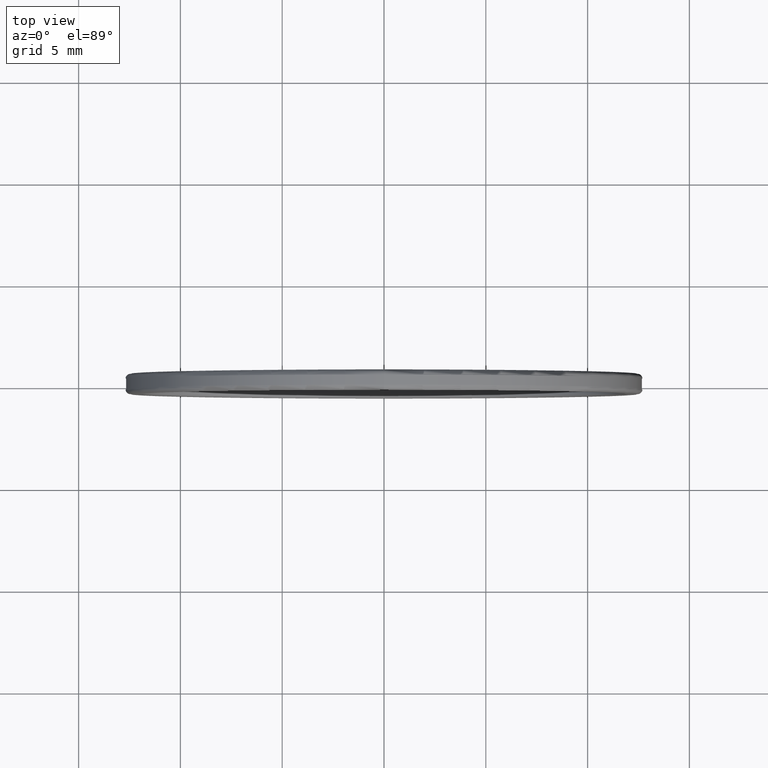
[diagram: clean part render]
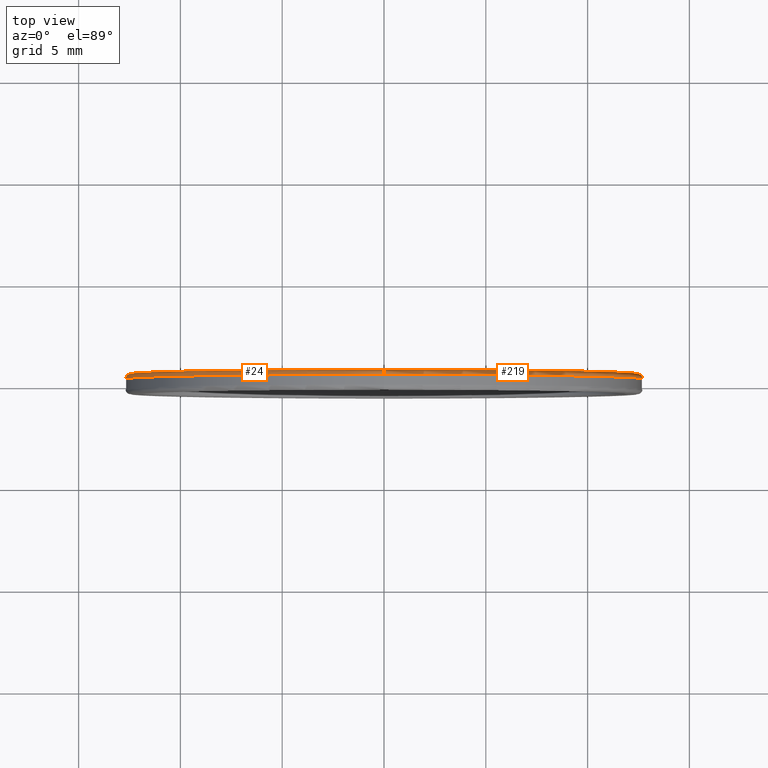
[diagram: same view with one multi-face feature highlighted, each face labeled with its STEP entity id]
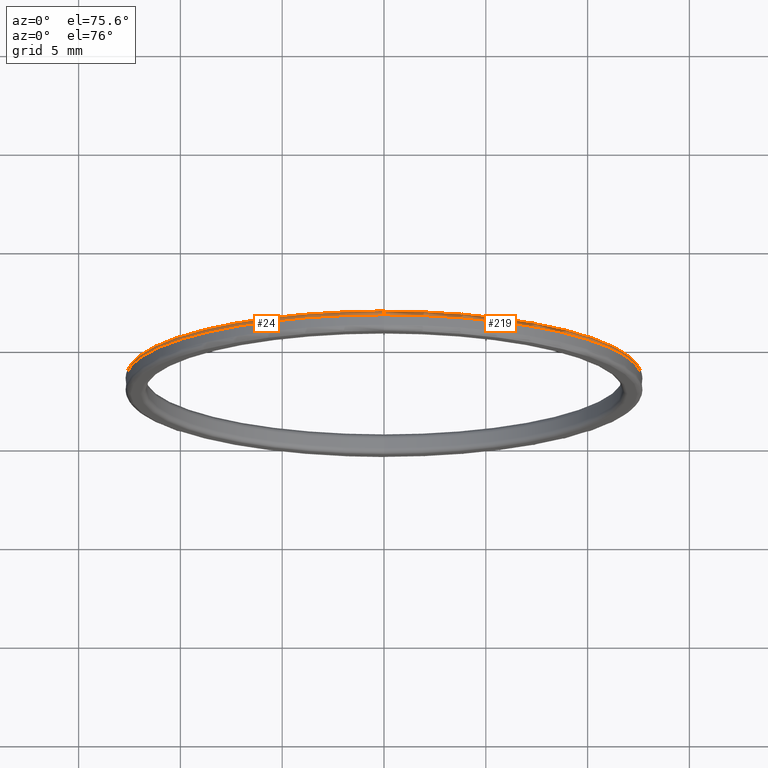
[diagram: same view with one multi-face feature highlighted, each face labeled with its STEP entity id]
A machine part, top view. The highlighted faces form ONE feature: a constant-radius fillet chain: 2 tangent blend faces with common blend radius 0.25 mm. The faces share edges in the B-rep.
A second angle (auxiliary view) of the same feature is appended — it is thin or edge-on in the first view.
Their STEP definitions:
[1] entity #24 (Torus):
#5 = CARTESIAN_POINT ( 'NONE',  ( 0.0000000000000000000, 0.2499999999999985012, 0.0000000000000000000 ) ) ;
#6 = DIRECTION ( 'NONE',  ( 0.0000000000000000000, 0.0000000000000000000, -1.000000000000000000 ) ) ;
#23 = CARTESIAN_POINT ( 'NONE',  ( 0.0000000000000000000, 0.2499999999999985012, 12.69999999999999929 ) ) ;
#24 = ADVANCED_FACE ( 'NONE', ( #135 ), #103, .T. ) ;
#44 = ORIENTED_EDGE ( 'NONE', *, *, #378, .F. ) ;
#52 = ORIENTED_EDGE ( 'NONE', *, *, #367, .F. ) ;
#62 = DIRECTION ( 'NONE',  ( 1.000000000000000000, 0.0000000000000000000, -1.224646799147353207E-16 ) ) ;
#79 = EDGE_CURVE ( 'NONE', #229, #433, #394, .T. ) ;
#80 = CARTESIAN_POINT ( 'NONE',  ( 0.0000000000000000000, 0.2499999999999985012, -12.44999999999999929 ) ) ;
#102 = CIRCLE ( 'NONE', #303, 12.44999999999999929 ) ;
#103 = TOROIDAL_SURFACE ( 'NONE', #439, 12.44999999999999929, 0.2500000000000000000 ) ;
#110 = VERTEX_POINT ( 'NONE', #23 ) ;
#109 = DIRECTION ( 'NONE',  ( 0.0000000000000000000, 0.0000000000000000000, -1.000000000000000000 ) ) ;
#112 = EDGE_LOOP ( 'NONE', ( #150, #44, #305, #52 ) ) ;
#114 = DIRECTION ( 'NONE',  ( 0.0000000000000000000, 0.0000000000000000000, -1.000000000000000000 ) ) ;
#134 = AXIS2_PLACEMENT_3D ( 'NONE', #381, #62, #312 ) ;
#135 = FACE_OUTER_BOUND ( 'NONE', #112, .T. ) ;
#137 = CARTESIAN_POINT ( 'NONE',  ( 1.539993349927796539E-15, 0.4999999999999985012, 12.44999999999999929 ) ) ;
#150 = ORIENTED_EDGE ( 'NONE', *, *, #234, .F. ) ;
#229 = VERTEX_POINT ( 'NONE', #247 ) ;
#234 = EDGE_CURVE ( 'NONE', #274, #110, #457, .T. ) ;
#238 = CIRCLE ( 'NONE', #403, 12.69999999999999929 ) ;
#247 = CARTESIAN_POINT ( 'NONE',  ( 0.0000000000000000000, 0.4999999999999985012, -12.44999999999999929 ) ) ;
#252 = DIRECTION ( 'NONE',  ( 0.0000000000000000000, -1.000000000000000000, 0.0000000000000000000 ) ) ;
#259 = AXIS2_PLACEMENT_3D ( 'NONE', #80, #344, #446 ) ;
#274 = VERTEX_POINT ( 'NONE', #137 ) ;
#284 = CARTESIAN_POINT ( 'NONE',  ( 1.555301434917138433E-15, 0.2499999999999985012, -12.69999999999999929 ) ) ;
#292 = CARTESIAN_POINT ( 'NONE',  ( 0.0000000000000000000, 0.2499999999999985012, 0.0000000000000000000 ) ) ;
#303 = AXIS2_PLACEMENT_3D ( 'NONE', #327, #318, #109 ) ;
#305 = ORIENTED_EDGE ( 'NONE', *, *, #79, .T. ) ;
#312 = DIRECTION ( 'NONE',  ( -1.224646799147349509E-16, 0.0000000000000000000, -1.000000000000000000 ) ) ;
#318 = DIRECTION ( 'NONE',  ( -0.0000000000000000000, 1.000000000000000000, -0.0000000000000000000 ) ) ;
#327 = CARTESIAN_POINT ( 'NONE',  ( 0.0000000000000000000, 0.4999999999999985012, 0.0000000000000000000 ) ) ;
#333 = DIRECTION ( 'NONE',  ( 0.0000000000000000000, -1.000000000000000000, 0.0000000000000000000 ) ) ;
#344 = DIRECTION ( 'NONE',  ( -1.000000000000000000, -0.0000000000000000000, -0.0000000000000000000 ) ) ;
#367 = EDGE_CURVE ( 'NONE', #110, #433, #238, .T. ) ;
#378 = EDGE_CURVE ( 'NONE', #229, #274, #102, .T. ) ;
#381 = CARTESIAN_POINT ( 'NONE',  ( 1.524685264938454646E-15, 0.2499999999999985012, 12.44999999999999929 ) ) ;
#394 = CIRCLE ( 'NONE', #259, 0.2500000000000002220 ) ;
#403 = AXIS2_PLACEMENT_3D ( 'NONE', #5, #252, #6 ) ;
#433 = VERTEX_POINT ( 'NONE', #284 ) ;
#439 = AXIS2_PLACEMENT_3D ( 'NONE', #292, #333, #114 ) ;
#446 = DIRECTION ( 'NONE',  ( 0.0000000000000000000, 0.0000000000000000000, 1.000000000000000000 ) ) ;
#457 = CIRCLE ( 'NONE', #134, 0.2500000000000002220 ) ;
[2] entity #219 (Torus):
#21 = EDGE_CURVE ( 'NONE', #274, #229, #233, .T. ) ;
#23 = CARTESIAN_POINT ( 'NONE',  ( 0.0000000000000000000, 0.2499999999999985012, 12.69999999999999929 ) ) ;
#62 = DIRECTION ( 'NONE',  ( 1.000000000000000000, 0.0000000000000000000, -1.224646799147353207E-16 ) ) ;
#79 = EDGE_CURVE ( 'NONE', #229, #433, #394, .T. ) ;
#80 = CARTESIAN_POINT ( 'NONE',  ( 0.0000000000000000000, 0.2499999999999985012, -12.44999999999999929 ) ) ;
#88 = ORIENTED_EDGE ( 'NONE', *, *, #79, .F. ) ;
#93 = AXIS2_PLACEMENT_3D ( 'NONE', #96, #454, #243 ) ;
#96 = CARTESIAN_POINT ( 'NONE',  ( 0.0000000000000000000, 0.2499999999999985012, 0.0000000000000000000 ) ) ;
#110 = VERTEX_POINT ( 'NONE', #23 ) ;
#134 = AXIS2_PLACEMENT_3D ( 'NONE', #381, #62, #312 ) ;
#137 = CARTESIAN_POINT ( 'NONE',  ( 1.539993349927796539E-15, 0.4999999999999985012, 12.44999999999999929 ) ) ;
#175 = TOROIDAL_SURFACE ( 'NONE', #93, 12.44999999999999929, 0.2500000000000000000 ) ;
#181 = DIRECTION ( 'NONE',  ( 0.0000000000000000000, 0.0000000000000000000, -1.000000000000000000 ) ) ;
#203 = ORIENTED_EDGE ( 'NONE', *, *, #410, .F. ) ;
#219 = ADVANCED_FACE ( 'NONE', ( #364 ), #175, .T. ) ;
#229 = VERTEX_POINT ( 'NONE', #247 ) ;
#233 = CIRCLE ( 'NONE', #334, 12.44999999999999929 ) ;
#234 = EDGE_CURVE ( 'NONE', #274, #110, #457, .T. ) ;
#243 = DIRECTION ( 'NONE',  ( 0.0000000000000000000, 0.0000000000000000000, -1.000000000000000000 ) ) ;
#247 = CARTESIAN_POINT ( 'NONE',  ( 0.0000000000000000000, 0.4999999999999985012, -12.44999999999999929 ) ) ;
#257 = EDGE_LOOP ( 'NONE', ( #372, #395, #203, #88 ) ) ;
#259 = AXIS2_PLACEMENT_3D ( 'NONE', #80, #344, #446 ) ;
#271 = CIRCLE ( 'NONE', #445, 12.69999999999999929 ) ;
#274 = VERTEX_POINT ( 'NONE', #137 ) ;
#284 = CARTESIAN_POINT ( 'NONE',  ( 1.555301434917138433E-15, 0.2499999999999985012, -12.69999999999999929 ) ) ;
#291 = CARTESIAN_POINT ( 'NONE',  ( 0.0000000000000000000, 0.2499999999999985012, 0.0000000000000000000 ) ) ;
#294 = DIRECTION ( 'NONE',  ( -0.0000000000000000000, 1.000000000000000000, -0.0000000000000000000 ) ) ;
#312 = DIRECTION ( 'NONE',  ( -1.224646799147349509E-16, 0.0000000000000000000, -1.000000000000000000 ) ) ;
#334 = AXIS2_PLACEMENT_3D ( 'NONE', #436, #294, #181 ) ;
#344 = DIRECTION ( 'NONE',  ( -1.000000000000000000, -0.0000000000000000000, -0.0000000000000000000 ) ) ;
#351 = DIRECTION ( 'NONE',  ( 0.0000000000000000000, -1.000000000000000000, 0.0000000000000000000 ) ) ;
#364 = FACE_OUTER_BOUND ( 'NONE', #257, .T. ) ;
#372 = ORIENTED_EDGE ( 'NONE', *, *, #21, .F. ) ;
#381 = CARTESIAN_POINT ( 'NONE',  ( 1.524685264938454646E-15, 0.2499999999999985012, 12.44999999999999929 ) ) ;
#394 = CIRCLE ( 'NONE', #259, 0.2500000000000002220 ) ;
#395 = ORIENTED_EDGE ( 'NONE', *, *, #234, .T. ) ;
#410 = EDGE_CURVE ( 'NONE', #433, #110, #271, .T. ) ;
#433 = VERTEX_POINT ( 'NONE', #284 ) ;
#436 = CARTESIAN_POINT ( 'NONE',  ( 0.0000000000000000000, 0.4999999999999985012, 0.0000000000000000000 ) ) ;
#445 = AXIS2_PLACEMENT_3D ( 'NONE', #291, #351, #456 ) ;
#446 = DIRECTION ( 'NONE',  ( 0.0000000000000000000, 0.0000000000000000000, 1.000000000000000000 ) ) ;
#454 = DIRECTION ( 'NONE',  ( 0.0000000000000000000, -1.000000000000000000, 0.0000000000000000000 ) ) ;
#456 = DIRECTION ( 'NONE',  ( 0.0000000000000000000, 0.0000000000000000000, -1.000000000000000000 ) ) ;
#457 = CIRCLE ( 'NONE', #134, 0.2500000000000002220 ) ;